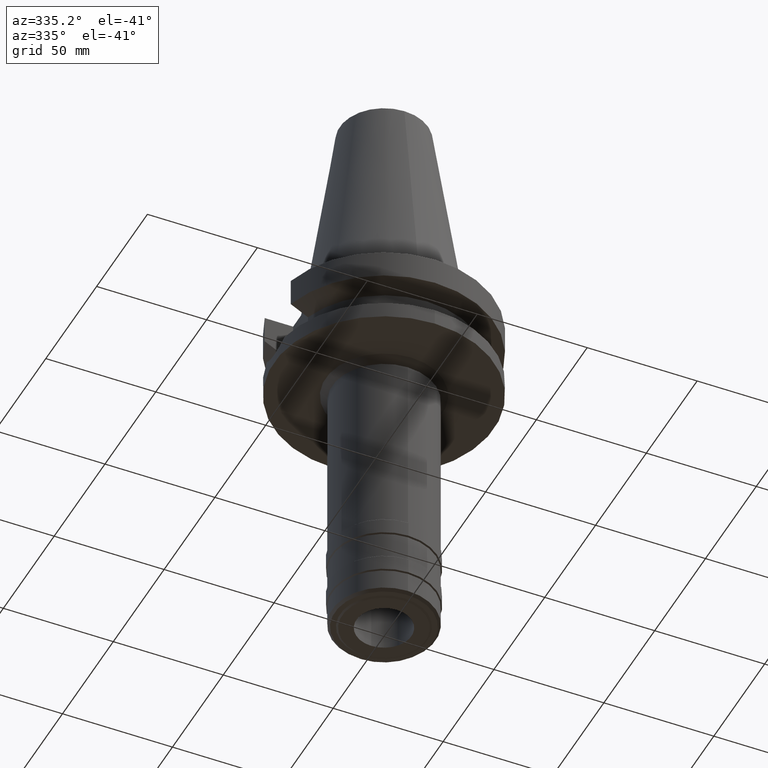
[diagram: clean part render]
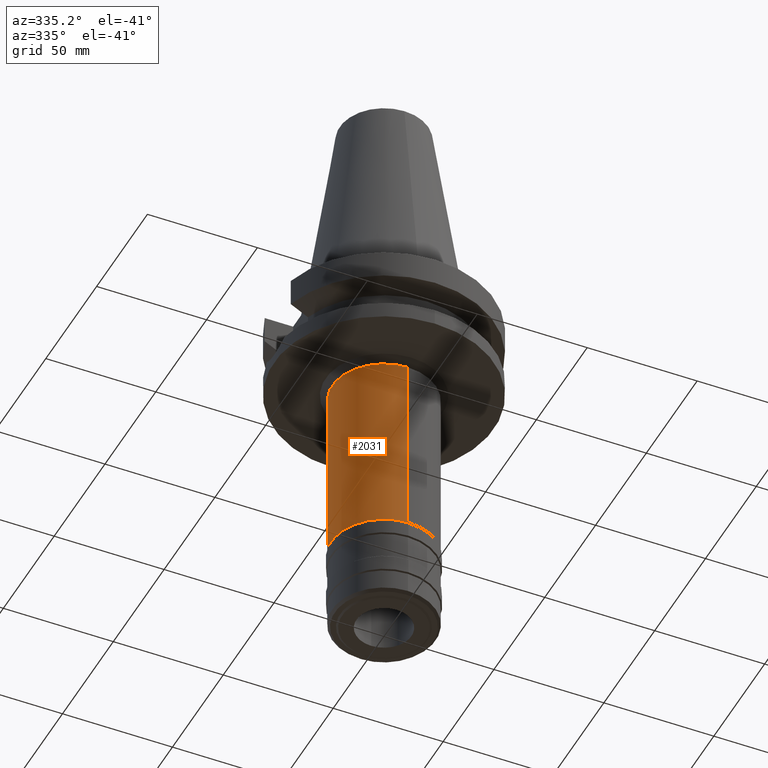
[diagram: same view with one face highlighted and labeled with its STEP entity id]
A machine part, auxiliary view. The second image highlights one B-rep face of the part: STEP entity #2031.
In plain terms, the highlighted cylindrical surface (partial cylindrical patch) has radius 23.5 mm, axis along (0, 0, -1).
Its self-contained STEP definition (entity closure, byte-faithful):
#571=CARTESIAN_POINT('',(0.E0,0.E0,-1.26E2));
#572=DIRECTION('',(0.E0,0.E0,1.E0));
#573=DIRECTION('',(0.E0,1.E0,0.E0));
#574=AXIS2_PLACEMENT_3D('',#571,#572,#573);
#594=DIRECTION('',(0.E0,0.E0,-1.E0));
#595=VECTOR('',#594,8.5E1);
#596=CARTESIAN_POINT('',(0.E0,-2.35E1,-4.1E1));
#597=LINE('',#596,#595);
#601=DIRECTION('',(0.E0,0.E0,-1.E0));
#602=VECTOR('',#601,8.5E1);
#603=CARTESIAN_POINT('',(0.E0,2.35E1,-4.1E1));
#604=LINE('',#603,#602);
#630=CARTESIAN_POINT('',(0.E0,0.E0,-4.1E1));
#631=DIRECTION('',(0.E0,0.E0,-1.E0));
#632=DIRECTION('',(0.E0,-1.E0,0.E0));
#633=AXIS2_PLACEMENT_3D('',#630,#631,#632);
#1366=CARTESIAN_POINT('',(0.E0,2.35E1,-1.26E2));
#1367=VERTEX_POINT('',#1366);
#1368=CARTESIAN_POINT('',(0.E0,-2.35E1,-1.26E2));
#1369=VERTEX_POINT('',#1368);
#1370=CARTESIAN_POINT('',(0.E0,2.35E1,-4.1E1));
#1371=VERTEX_POINT('',#1370);
#1372=CARTESIAN_POINT('',(0.E0,-2.35E1,-4.1E1));
#1373=VERTEX_POINT('',#1372);
#2017=CARTESIAN_POINT('',(0.E0,2.634705123686E-14,1.1514E2));
#2018=DIRECTION('',(0.E0,0.E0,-1.E0));
#2019=DIRECTION('',(0.E0,-1.E0,0.E0));
#2020=AXIS2_PLACEMENT_3D('',#2017,#2018,#2019);
#2021=CYLINDRICAL_SURFACE('',#2020,2.35E1);
#2023=ORIENTED_EDGE('',*,*,#2022,.F.);
#2025=ORIENTED_EDGE('',*,*,#2024,.F.);
#2027=ORIENTED_EDGE('',*,*,#2026,.T.);
#2028=ORIENTED_EDGE('',*,*,#2010,.F.);
#2029=EDGE_LOOP('',(#2023,#2025,#2027,#2028));
#2030=FACE_OUTER_BOUND('',#2029,.F.);
#575=CIRCLE('',#574,2.35E1);
#634=CIRCLE('',#633,2.35E1);
#2010=EDGE_CURVE('',#1367,#1369,#575,.T.);
#2022=EDGE_CURVE('',#1371,#1367,#604,.T.);
#2024=EDGE_CURVE('',#1373,#1371,#634,.T.);
#2026=EDGE_CURVE('',#1373,#1369,#597,.T.);
#2031=ADVANCED_FACE('',(#2030),#2021,.T.);